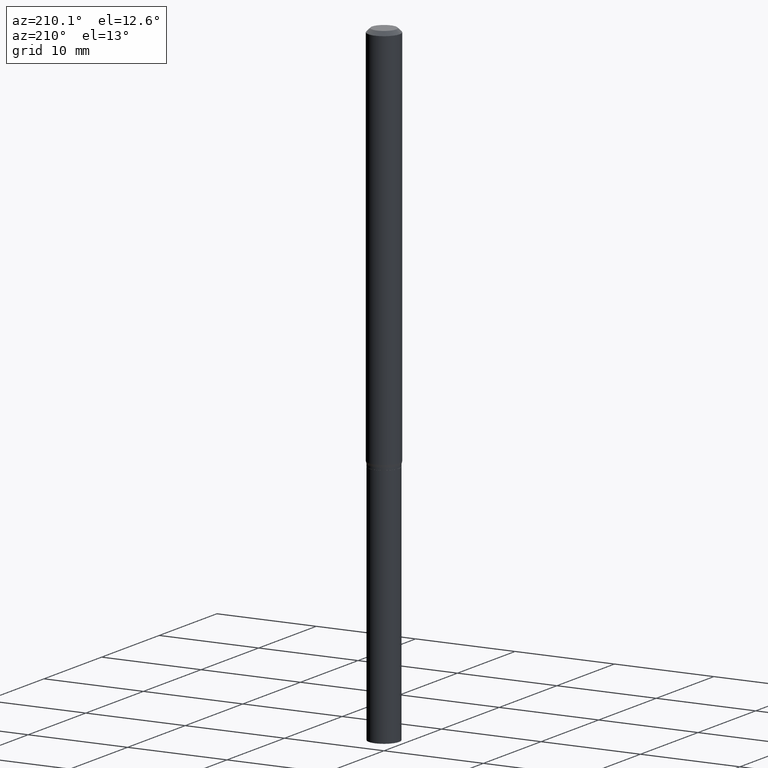
[diagram: clean part render]
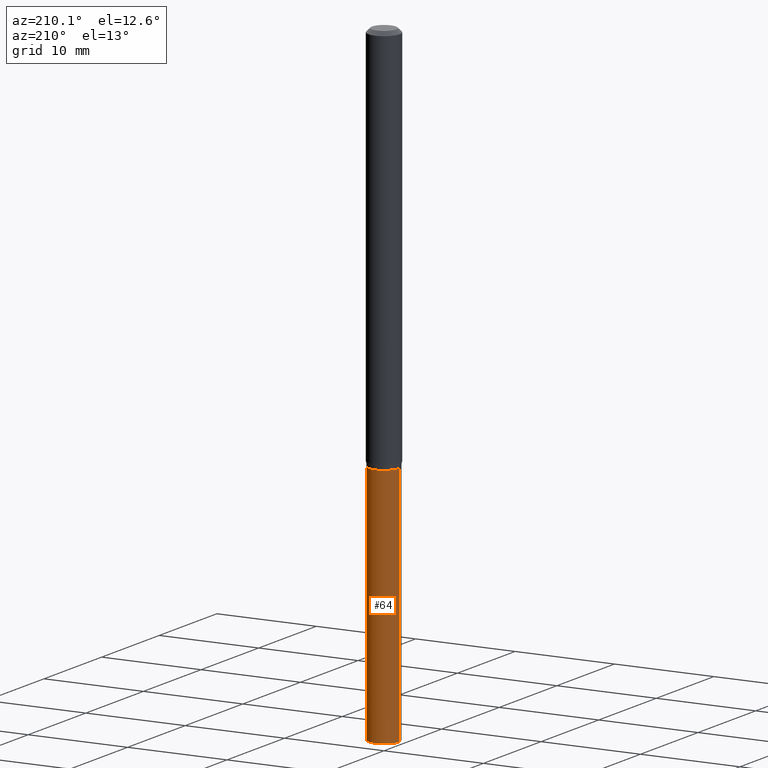
[diagram: same view with one face highlighted and labeled with its STEP entity id]
A machine part, auxiliary view. The second image highlights one B-rep face of the part: STEP entity #64.
In plain terms, the highlighted cylindrical surface (edge-blend (fillet) strip) has radius 1.524 mm, axis along (-0, 0, 1).
Its self-contained STEP definition (entity closure, byte-faithful):
#11 = CIRCLE ( 'NONE', #346, 0.05999999999999999778 ) ;
#25 = CARTESIAN_POINT ( 'NONE',  ( 0.05999999999999999778, -9.147681107769039999E-15, -2.500000000000000000 ) ) ;
#35 = ORIENTED_EDGE ( 'NONE', *, *, #364, .F. ) ;
#52 = CARTESIAN_POINT ( 'NONE',  ( 0.000000000000000000, 0.000000000000000000, 0.000000000000000000 ) ) ;
#64 = ADVANCED_FACE ( 'NONE', ( #300 ), #442, .T. ) ;
#101 = CARTESIAN_POINT ( 'NONE',  ( -0.05999999999999999778, 4.263256414560600957E-16, -2.951361054152943413E-30 ) ) ;
#106 = DIRECTION ( 'NONE',  ( -2.445468806185136597E-29, 3.491481338843145583E-15, 1.000000000000000000 ) ) ;
#144 = DIRECTION ( 'NONE',  ( 1.000000000000000000, -6.982962677686267499E-15, 4.876176775795936353E-29 ) ) ;
#148 = EDGE_CURVE ( 'NONE', #217, #393, #457, .T. ) ;
#162 = ORIENTED_EDGE ( 'NONE', *, *, #299, .T. ) ;
#166 = ORIENTED_EDGE ( 'NONE', *, *, #148, .F. ) ;
#187 = EDGE_LOOP ( 'NONE', ( #162, #453, #166, #35 ) ) ;
#195 = VERTEX_POINT ( 'NONE', #25 ) ;
#198 = CARTESIAN_POINT ( 'NONE',  ( 0.05999999999999999778, -4.189777606611760421E-16, 2.925706065477561756E-30 ) ) ;
#202 = CARTESIAN_POINT ( 'NONE',  ( 6.113672015462842613E-29, -8.728703347107864943E-15, -2.500000000000000000 ) ) ;
#213 = DIRECTION ( 'NONE',  ( -2.445468806185136877E-29, 3.491481338843145188E-15, 1.000000000000000000 ) ) ;
#217 = VERTEX_POINT ( 'NONE', #336 ) ;
#222 = DIRECTION ( 'NONE',  ( -2.445468806185136877E-29, 3.491481338843145188E-15, 1.000000000000000000 ) ) ;
#230 = CARTESIAN_POINT ( 'NONE',  ( 3.766021961525111077E-29, -5.376881261818445562E-15, -1.540000000000000258 ) ) ;
#253 = CARTESIAN_POINT ( 'NONE',  ( -0.05999999999999999778, -6.626466663007093973E-15, -2.500000000000000000 ) ) ;
#299 = EDGE_CURVE ( 'NONE', #195, #458, #11, .T. ) ;
#300 = FACE_OUTER_BOUND ( 'NONE', #187, .T. ) ;
#321 = LINE ( 'NONE', #101, #392 ) ;
#336 = CARTESIAN_POINT ( 'NONE',  ( 0.05999999999999999778, -5.795859022479621407E-15, -1.540000000000000258 ) ) ;
#346 = AXIS2_PLACEMENT_3D ( 'NONE', #202, #454, #348 ) ;
#348 = DIRECTION ( 'NONE',  ( 1.000000000000000000, -6.982962677686251722E-15, 0.000000000000000000 ) ) ;
#350 = EDGE_CURVE ( 'NONE', #458, #393, #321, .T. ) ;
#364 = EDGE_CURVE ( 'NONE', #195, #217, #390, .T. ) ;
#375 = DIRECTION ( 'NONE',  ( 1.000000000000000000, -6.982962677686268288E-15, 0.000000000000000000 ) ) ;
#387 = AXIS2_PLACEMENT_3D ( 'NONE', #230, #451, #375 ) ;
#390 = LINE ( 'NONE', #198, #424 ) ;
#392 = VECTOR ( 'NONE', #222, 39.37007874015748143 ) ;
#393 = VERTEX_POINT ( 'NONE', #433 ) ;
#424 = VECTOR ( 'NONE', #213, 39.37007874015748143 ) ;
#425 = AXIS2_PLACEMENT_3D ( 'NONE', #52, #106, #144 ) ;
#433 = CARTESIAN_POINT ( 'NONE',  ( -0.05999999999999999778, -6.626466663007093973E-15, -1.540000000000000258 ) ) ;
#442 = CYLINDRICAL_SURFACE ( 'NONE', #425, 0.05999999999999999778 ) ;
#451 = DIRECTION ( 'NONE',  ( -2.445468806185136597E-29, 3.491481338843145583E-15, 1.000000000000000000 ) ) ;
#453 = ORIENTED_EDGE ( 'NONE', *, *, #350, .T. ) ;
#454 = DIRECTION ( 'NONE',  ( -2.445468806185136597E-29, 3.491481338843145583E-15, 1.000000000000000000 ) ) ;
#457 = CIRCLE ( 'NONE', #387, 0.05999999999999999778 ) ;
#458 = VERTEX_POINT ( 'NONE', #253 ) ;